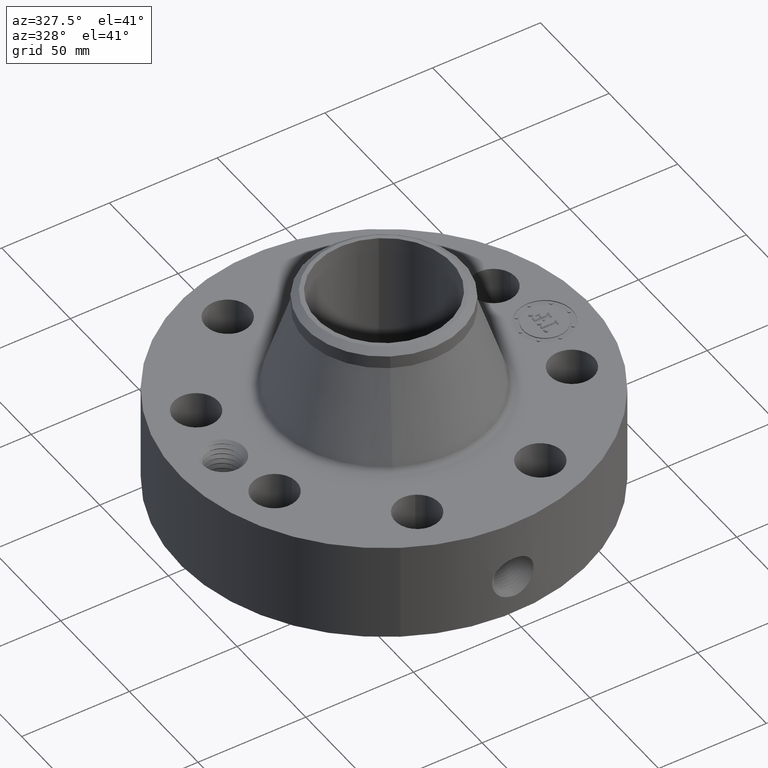
[diagram: clean part render]
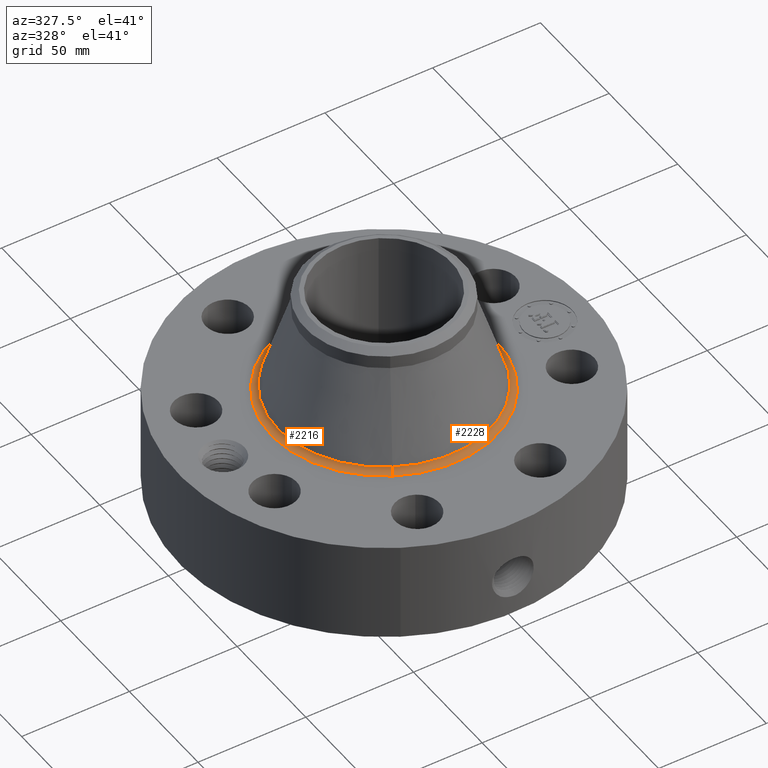
[diagram: same view with one multi-face feature highlighted, each face labeled with its STEP entity id]
A machine part, auxiliary view. The highlighted faces form ONE feature: a constant-radius fillet chain: 2 tangent blend faces with common blend radius 3.048 mm. The faces share edges in the B-rep.
Their STEP definitions:
[1] entity #2228 (Torus):
#1733=AXIS2_PLACEMENT_3D('Circle Axis2P3D',#1731,#1732,$) ;
#2189=AXIS2_PLACEMENT_3D('Torus Axis2P3D',#2186,#2187,#2188) ;
#2202=AXIS2_PLACEMENT_3D('Circle Axis2P3D',#2200,#2201,$) ;
#2207=AXIS2_PLACEMENT_3D('Circle Axis2P3D',#2205,#2206,$) ;
#2219=AXIS2_PLACEMENT_3D('Circle Axis2P3D',#2217,#2218,$) ;
#1709=CARTESIAN_POINT('Vertex',(-0.93171691789,-1.70549637831,1.89663140266)) ;
#1711=CARTESIAN_POINT('Vertex',(0.93171691789,1.70549637831,1.89663140266)) ;
#1731=CARTESIAN_POINT('Axis2P3D Location',(0.,0.,1.89663140266)) ;
#2186=CARTESIAN_POINT('Axis2P3D Location',(0.,0.,1.93300000001)) ;
#2195=CARTESIAN_POINT('Vertex',(-0.986542168489,-1.80585332637,1.81300000001)) ;
#2197=CARTESIAN_POINT('Vertex',(0.986542168489,1.80585332637,1.81300000001)) ;
#2200=CARTESIAN_POINT('Axis2P3D Location',(-0.986542168489,-1.80585332637,1.93300000001)) ;
#2205=CARTESIAN_POINT('Axis2P3D Location',(0.986542168489,1.80585332637,1.93300000001)) ;
#2217=CARTESIAN_POINT('Axis2P3D Location',(0.,0.,1.81300000001)) ;
#1732=DIRECTION('Axis2P3D Direction',(0.,0.,-0.0393700787402)) ;
#2187=DIRECTION('Axis2P3D Direction',(0.,0.,-0.0393700787402)) ;
#2188=DIRECTION('Axis2P3D XDirection',(0.0188750212049,0.0345504945626,0.)) ;
#2201=DIRECTION('Axis2P3D Direction',(0.0345504945626,-0.0188750212049,0.)) ;
#2206=DIRECTION('Axis2P3D Direction',(-0.0345504945626,0.0188750212049,0.)) ;
#2218=DIRECTION('Axis2P3D Direction',(0.,0.,-0.0393700787402)) ;
#2223=ORIENTED_EDGE('',*,*,#2221,.F.) ;
#2224=ORIENTED_EDGE('',*,*,#2209,.T.) ;
#2225=ORIENTED_EDGE('',*,*,#1735,.T.) ;
#2226=ORIENTED_EDGE('',*,*,#2204,.F.) ;
#2228=ADVANCED_FACE('PartBody',(#2227),#2190,.F.) ;
#1734=CIRCLE('generated circle',#1733,1.94340276616) ;
#2203=CIRCLE('generated circle',#2202,0.12) ;
#2208=CIRCLE('generated circle',#2207,0.12) ;
#2220=CIRCLE('generated circle',#2219,2.05775889904) ;
#2190=TOROIDAL_SURFACE('homeo Torus',#2189,2.05775889904,0.12) ;
#1735=EDGE_CURVE('',#1712,#1710,#1734,.T.) ;
#2204=EDGE_CURVE('',#2196,#1710,#2203,.T.) ;
#2209=EDGE_CURVE('',#2198,#1712,#2208,.T.) ;
#2221=EDGE_CURVE('',#2198,#2196,#2220,.T.) ;
#2222=EDGE_LOOP('',(#2223,#2224,#2225,#2226)) ;
#2227=FACE_OUTER_BOUND('',#2222,.T.) ;
#1710=VERTEX_POINT('',#1709) ;
#1712=VERTEX_POINT('',#1711) ;
#2196=VERTEX_POINT('',#2195) ;
#2198=VERTEX_POINT('',#2197) ;
[2] entity #2216 (Torus):
#1707=AXIS2_PLACEMENT_3D('Circle Axis2P3D',#1705,#1706,$) ;
#2189=AXIS2_PLACEMENT_3D('Torus Axis2P3D',#2186,#2187,#2188) ;
#2193=AXIS2_PLACEMENT_3D('Circle Axis2P3D',#2191,#2192,$) ;
#2202=AXIS2_PLACEMENT_3D('Circle Axis2P3D',#2200,#2201,$) ;
#2207=AXIS2_PLACEMENT_3D('Circle Axis2P3D',#2205,#2206,$) ;
#1705=CARTESIAN_POINT('Axis2P3D Location',(0.,0.,1.89663140266)) ;
#1709=CARTESIAN_POINT('Vertex',(-0.93171691789,-1.70549637831,1.89663140266)) ;
#1711=CARTESIAN_POINT('Vertex',(0.93171691789,1.70549637831,1.89663140266)) ;
#2186=CARTESIAN_POINT('Axis2P3D Location',(0.,0.,1.93300000001)) ;
#2191=CARTESIAN_POINT('Axis2P3D Location',(0.,0.,1.81300000001)) ;
#2195=CARTESIAN_POINT('Vertex',(-0.986542168489,-1.80585332637,1.81300000001)) ;
#2197=CARTESIAN_POINT('Vertex',(0.986542168489,1.80585332637,1.81300000001)) ;
#2200=CARTESIAN_POINT('Axis2P3D Location',(-0.986542168489,-1.80585332637,1.93300000001)) ;
#2205=CARTESIAN_POINT('Axis2P3D Location',(0.986542168489,1.80585332637,1.93300000001)) ;
#1706=DIRECTION('Axis2P3D Direction',(0.,0.,-0.0393700787402)) ;
#2187=DIRECTION('Axis2P3D Direction',(0.,0.,-0.0393700787402)) ;
#2188=DIRECTION('Axis2P3D XDirection',(0.0188750212049,0.0345504945626,0.)) ;
#2192=DIRECTION('Axis2P3D Direction',(0.,0.,-0.0393700787402)) ;
#2201=DIRECTION('Axis2P3D Direction',(0.0345504945626,-0.0188750212049,0.)) ;
#2206=DIRECTION('Axis2P3D Direction',(-0.0345504945626,0.0188750212049,0.)) ;
#2211=ORIENTED_EDGE('',*,*,#2199,.F.) ;
#2212=ORIENTED_EDGE('',*,*,#2204,.T.) ;
#2213=ORIENTED_EDGE('',*,*,#1713,.T.) ;
#2214=ORIENTED_EDGE('',*,*,#2209,.F.) ;
#2216=ADVANCED_FACE('PartBody',(#2215),#2190,.F.) ;
#1708=CIRCLE('generated circle',#1707,1.94340276616) ;
#2194=CIRCLE('generated circle',#2193,2.05775889904) ;
#2203=CIRCLE('generated circle',#2202,0.12) ;
#2208=CIRCLE('generated circle',#2207,0.12) ;
#2190=TOROIDAL_SURFACE('homeo Torus',#2189,2.05775889904,0.12) ;
#1713=EDGE_CURVE('',#1710,#1712,#1708,.T.) ;
#2199=EDGE_CURVE('',#2196,#2198,#2194,.T.) ;
#2204=EDGE_CURVE('',#2196,#1710,#2203,.T.) ;
#2209=EDGE_CURVE('',#2198,#1712,#2208,.T.) ;
#2210=EDGE_LOOP('',(#2211,#2212,#2213,#2214)) ;
#2215=FACE_OUTER_BOUND('',#2210,.T.) ;
#1710=VERTEX_POINT('',#1709) ;
#1712=VERTEX_POINT('',#1711) ;
#2196=VERTEX_POINT('',#2195) ;
#2198=VERTEX_POINT('',#2197) ;